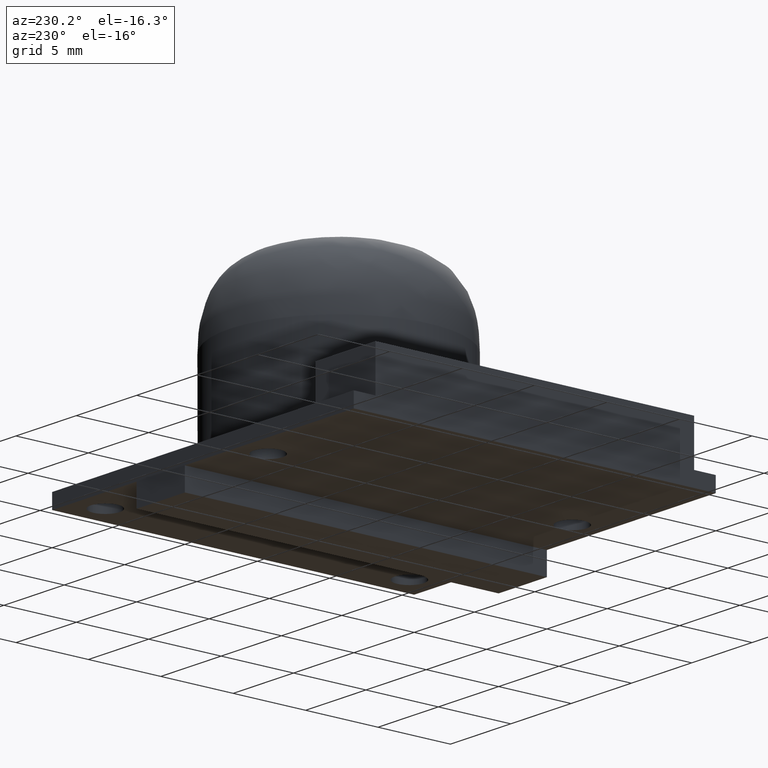
[diagram: clean part render]
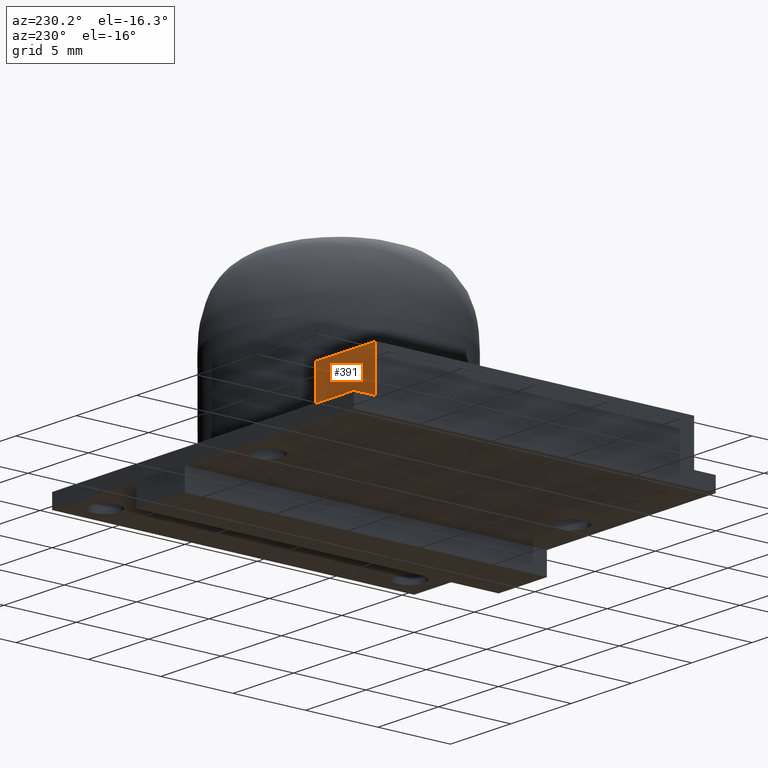
[diagram: same view with one face highlighted and labeled with its STEP entity id]
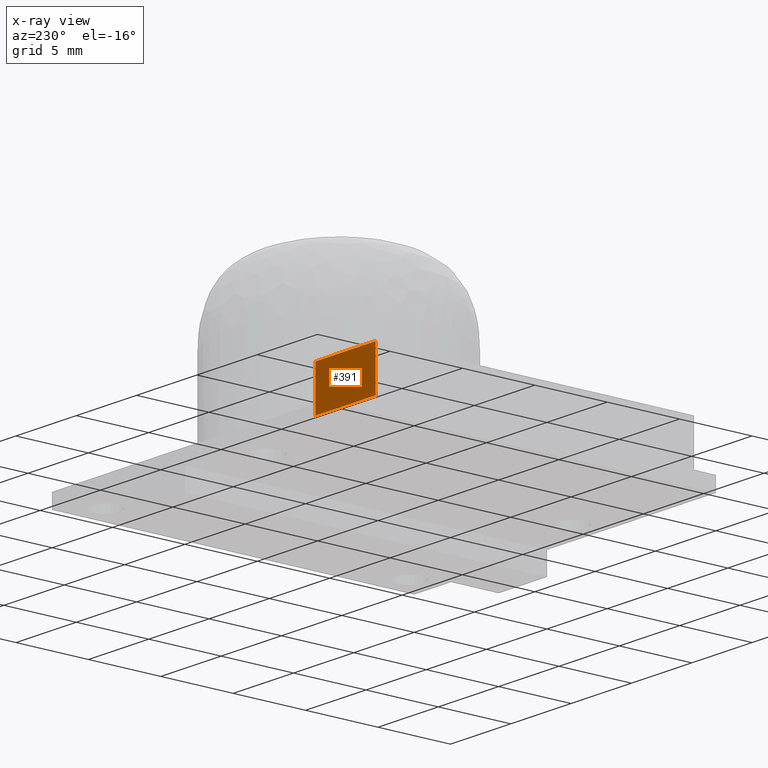
[diagram: x-ray of the same camera — body ghosted, the highlighted face saturated]
A machine part, auxiliary view. The second image highlights one B-rep face of the part: STEP entity #391.
The next image is the same camera in x-ray: the body ghosted, the highlighted face saturated — about 0% of this face is hidden behind the body in this view.
In plain terms, the highlighted planar face has unit normal (0, 1, 0).
Its self-contained STEP definition (entity closure, byte-faithful):
#47=LINE('',#733,#88);
#48=LINE('',#735,#89);
#49=LINE('',#737,#90);
#50=LINE('',#738,#91);
#88=VECTOR('',#484,10.);
#89=VECTOR('',#485,10.);
#90=VECTOR('',#486,10.);
#91=VECTOR('',#487,10.);
#125=PLANE('',#428);
#142=FACE_OUTER_BOUND('',#165,.T.);
#165=EDGE_LOOP('',(#304,#305,#306,#307));
#204=VERTEX_POINT('',#731);
#205=VERTEX_POINT('',#732);
#206=VERTEX_POINT('',#734);
#207=VERTEX_POINT('',#736);
#244=EDGE_CURVE('',#204,#205,#47,.T.);
#245=EDGE_CURVE('',#204,#206,#48,.T.);
#246=EDGE_CURVE('',#207,#206,#49,.T.);
#247=EDGE_CURVE('',#205,#207,#50,.T.);
#304=ORIENTED_EDGE('',*,*,#244,.F.);
#305=ORIENTED_EDGE('',*,*,#245,.T.);
#306=ORIENTED_EDGE('',*,*,#246,.F.);
#307=ORIENTED_EDGE('',*,*,#247,.F.);
#391=ADVANCED_FACE('',(#142),#125,.T.);
#428=AXIS2_PLACEMENT_3D('',#730,#482,#483);
#482=DIRECTION('center_axis',(0.,1.,0.));
#483=DIRECTION('ref_axis',(-1.,0.,0.));
#484=DIRECTION('',(1.,0.,0.));
#485=DIRECTION('',(0.,0.,1.));
#486=DIRECTION('',(-1.,0.,0.));
#487=DIRECTION('',(0.,0.,1.));
#730=CARTESIAN_POINT('Origin',(5.,23.5,1.));
#731=CARTESIAN_POINT('',(0.,23.5,1.));
#732=CARTESIAN_POINT('',(5.,23.5,1.));
#733=CARTESIAN_POINT('',(8.75,23.5,1.));
#734=CARTESIAN_POINT('',(0.,23.5,4.));
#735=CARTESIAN_POINT('',(0.,23.5,1.));
#736=CARTESIAN_POINT('',(5.,23.5,4.));
#737=CARTESIAN_POINT('',(0.,23.5,4.));
#738=CARTESIAN_POINT('',(5.,23.5,1.));